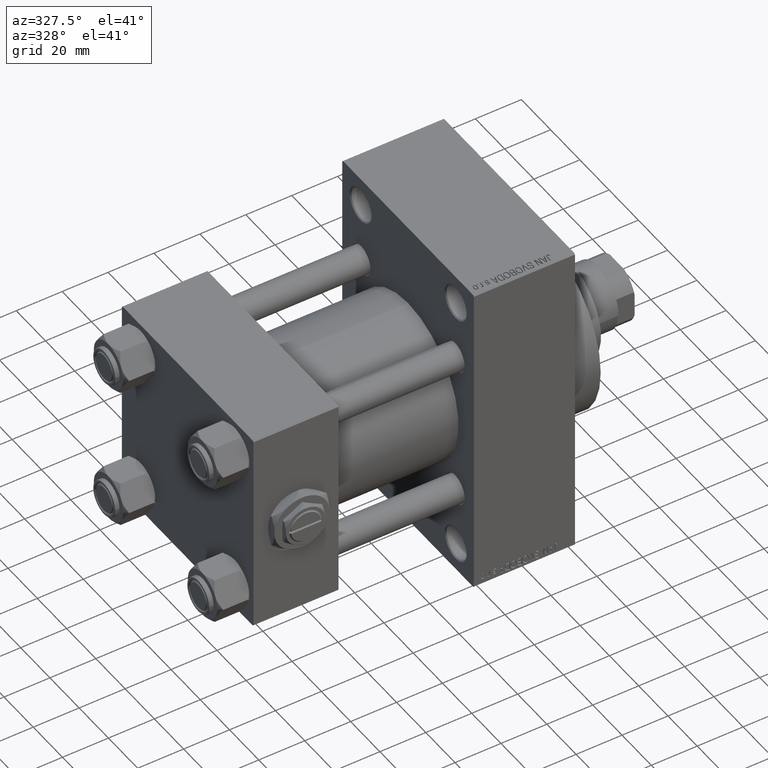
[diagram: clean part render]
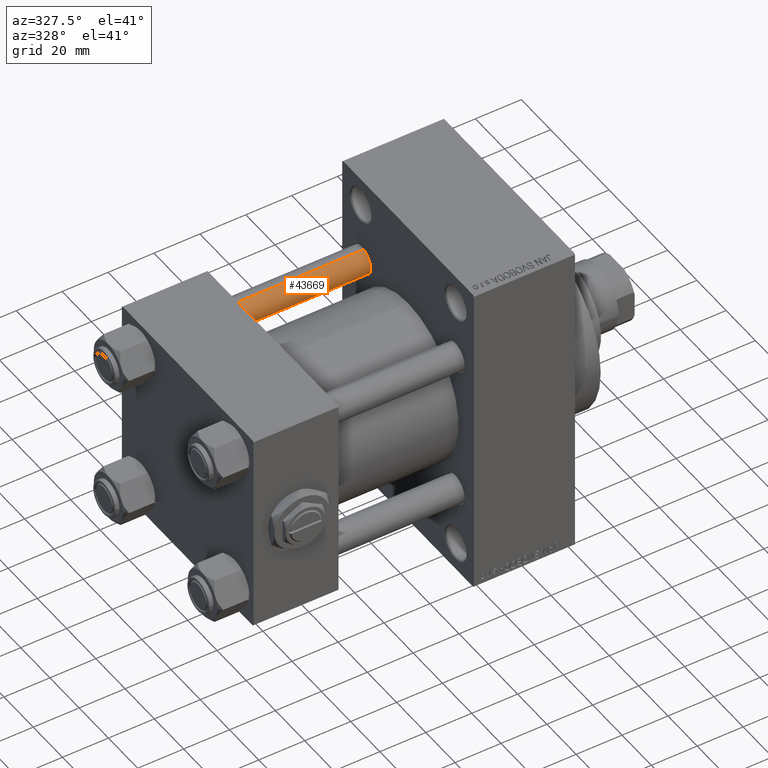
[diagram: same view with one face highlighted and labeled with its STEP entity id]
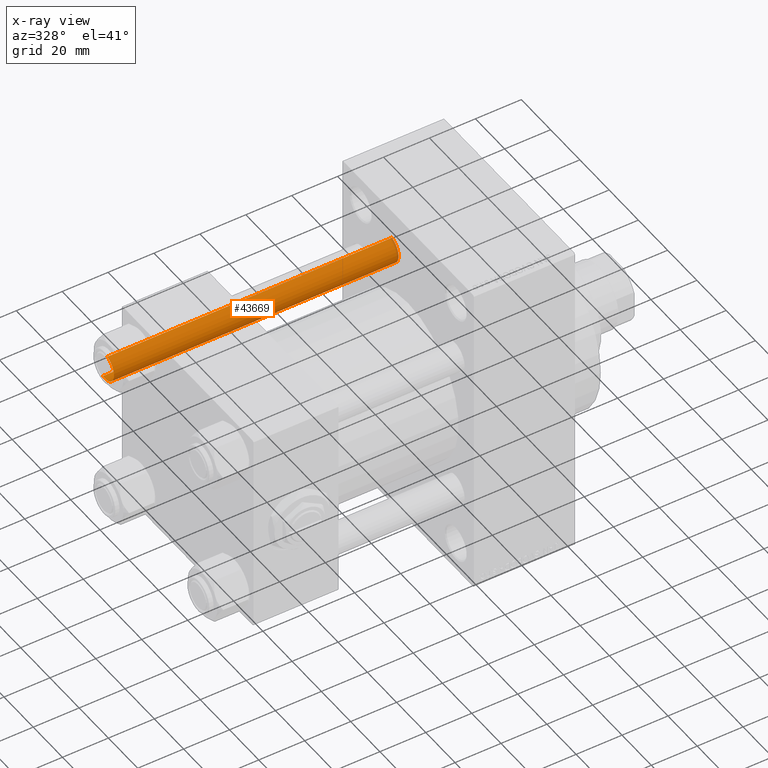
[diagram: x-ray of the same camera — body ghosted, the highlighted face saturated]
A machine part, auxiliary view. The second image highlights one B-rep face of the part: STEP entity #43669.
The next image is the same camera in x-ray: the body ghosted, the highlighted face saturated — about 1% of this face is hidden behind the body in this view.
In plain terms, the highlighted cylindrical surface (edge-blend (fillet) strip) has radius 6 mm, axis along (-1, -0, 0).
Its self-contained STEP definition (entity closure, byte-faithful):
#1249 = VERTEX_POINT ( 'NONE', #16820 ) ;
#2919 = EDGE_CURVE ( 'NONE', #32861, #1249, #44794, .T. ) ;
#4247 = CARTESIAN_POINT ( 'NONE',  ( 0.000000000000000000, 0.000000000000000000, 124.5000000000000000 ) ) ;
#4735 = DIRECTION ( 'NONE',  ( 1.000000000000000000, 0.000000000000000000, 0.000000000000000000 ) ) ;
#5802 = ORIENTED_EDGE ( 'NONE', *, *, #23462, .T. ) ;
#7075 = ORIENTED_EDGE ( 'NONE', *, *, #13547, .F. ) ;
#8140 = AXIS2_PLACEMENT_3D ( 'NONE', #31007, #23588, #4735 ) ;
#11708 = DIRECTION ( 'NONE',  ( 1.000000000000000000, 0.000000000000000000, 0.000000000000000000 ) ) ;
#12457 = CARTESIAN_POINT ( 'NONE',  ( 6.000000000000000888, 7.347880794884120722E-16, 0.4999999999999865663 ) ) ;
#12499 = DIRECTION ( 'NONE',  ( -0.000000000000000000, -0.000000000000000000, -1.000000000000000000 ) ) ;
#13547 = EDGE_CURVE ( 'NONE', #45337, #19622, #36318, .T. ) ;
#16820 = CARTESIAN_POINT ( 'NONE',  ( -6.000000000000000888, 0.000000000000000000, 0.4999999999999865663 ) ) ;
#17061 = EDGE_CURVE ( 'NONE', #45337, #32861, #42870, .T. ) ;
#17805 = DIRECTION ( 'NONE',  ( -0.000000000000000000, -0.000000000000000000, -1.000000000000000000 ) ) ;
#18543 = ORIENTED_EDGE ( 'NONE', *, *, #17061, .T. ) ;
#18785 = CARTESIAN_POINT ( 'NONE',  ( -6.000000000000000888, 0.000000000000000000, 125.0000000000000000 ) ) ;
#19622 = VERTEX_POINT ( 'NONE', #12457 ) ;
#20181 = DIRECTION ( 'NONE',  ( -1.000000000000000000, 0.000000000000000000, 0.000000000000000000 ) ) ;
#20738 = AXIS2_PLACEMENT_3D ( 'NONE', #38998, #12499, #20181 ) ;
#22310 = AXIS2_PLACEMENT_3D ( 'NONE', #4247, #33517, #11708 ) ;
#23462 = EDGE_CURVE ( 'NONE', #1249, #19622, #29513, .T. ) ;
#23588 = DIRECTION ( 'NONE',  ( -0.000000000000000000, -0.000000000000000000, 1.000000000000000000 ) ) ;
#23645 = FACE_OUTER_BOUND ( 'NONE', #33475, .T. ) ;
#24445 = CARTESIAN_POINT ( 'NONE',  ( 6.000000000000000888, 7.347880794884120722E-16, 125.0000000000000000 ) ) ;
#26320 = VECTOR ( 'NONE', #43774, 1000.000000000000000 ) ;
#27637 = VECTOR ( 'NONE', #17805, 1000.000000000000000 ) ;
#29513 = CIRCLE ( 'NONE', #8140, 6.000000000000000888 ) ;
#29858 = CARTESIAN_POINT ( 'NONE',  ( 6.000000000000000888, 7.347880794884120722E-16, 124.5000000000000000 ) ) ;
#31007 = CARTESIAN_POINT ( 'NONE',  ( 0.000000000000000000, 0.000000000000000000, 0.4999999999999865663 ) ) ;
#32861 = VERTEX_POINT ( 'NONE', #46910 ) ;
#33475 = EDGE_LOOP ( 'NONE', ( #7075, #18543, #47563, #5802 ) ) ;
#33517 = DIRECTION ( 'NONE',  ( 0.000000000000000000, 0.000000000000000000, -1.000000000000000000 ) ) ;
#36318 = LINE ( 'NONE', #24445, #26320 ) ;
#38998 = CARTESIAN_POINT ( 'NONE',  ( 0.000000000000000000, 0.000000000000000000, 125.0000000000000000 ) ) ;
#42870 = CIRCLE ( 'NONE', #22310, 6.000000000000000888 ) ;
#43669 = ADVANCED_FACE ( 'NONE', ( #23645 ), #45962, .T. ) ;
#43774 = DIRECTION ( 'NONE',  ( -0.000000000000000000, -0.000000000000000000, -1.000000000000000000 ) ) ;
#44794 = LINE ( 'NONE', #18785, #27637 ) ;
#45337 = VERTEX_POINT ( 'NONE', #29858 ) ;
#45962 = CYLINDRICAL_SURFACE ( 'NONE', #20738, 6.000000000000000888 ) ;
#46910 = CARTESIAN_POINT ( 'NONE',  ( -6.000000000000000888, 0.000000000000000000, 124.5000000000000000 ) ) ;
#47563 = ORIENTED_EDGE ( 'NONE', *, *, #2919, .T. ) ;